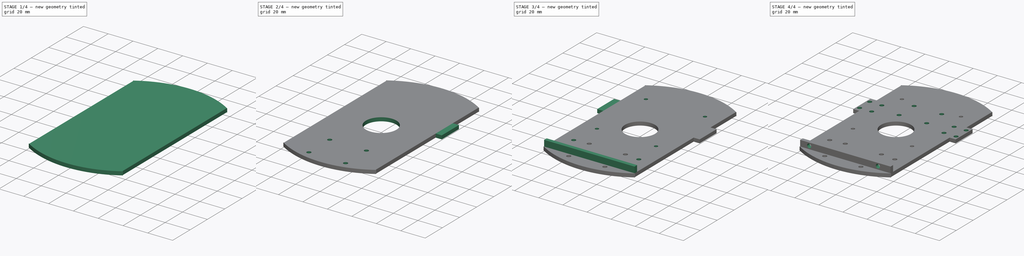
[diagram: build sequence overview — one tinted view per stage of 4, left to right]
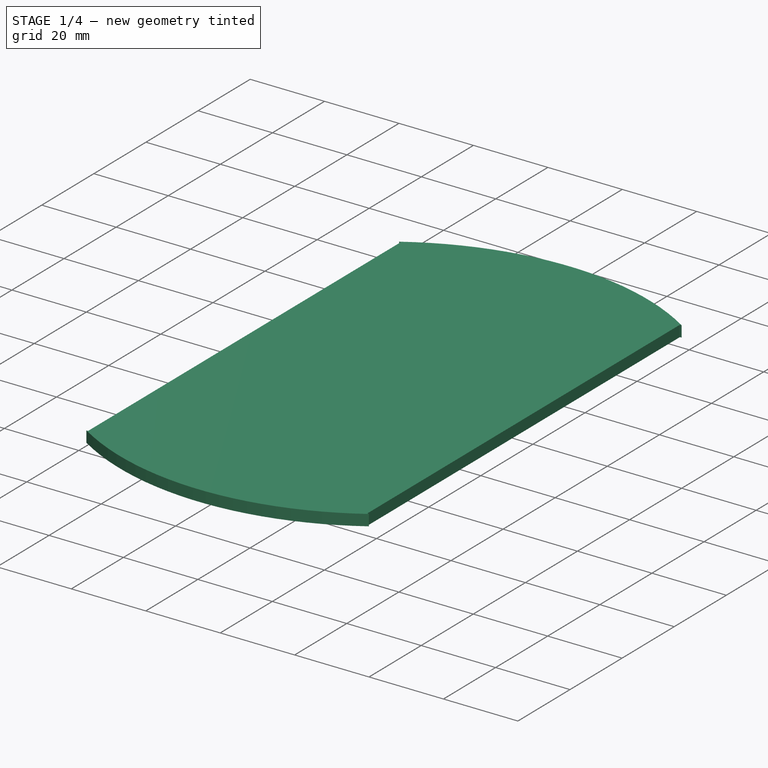
[diagram: stage 1 of 4 — iso view after this stage's code; geometry added in this stage tinted green]
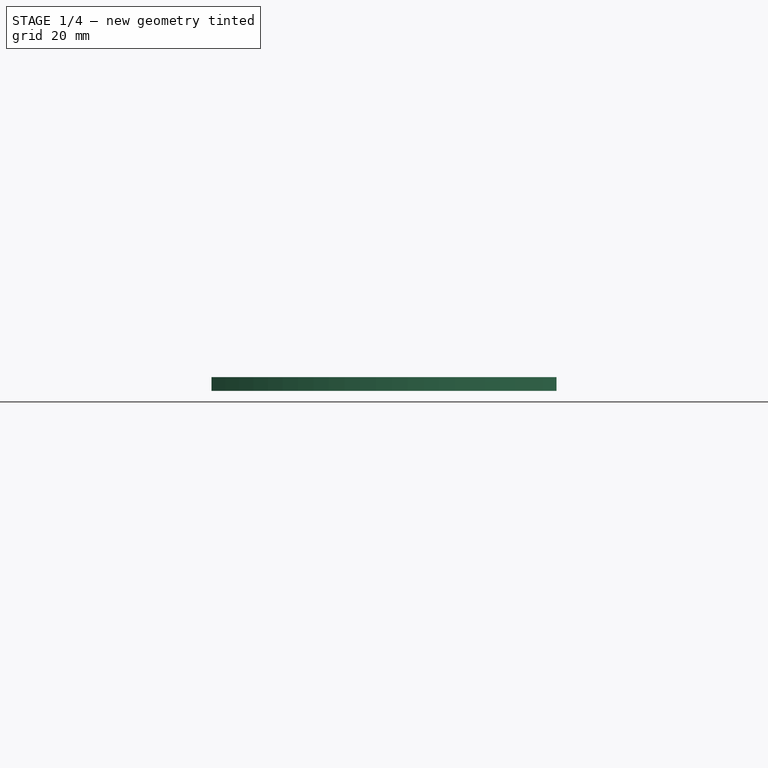
[diagram: stage 1 of 4 — front view after this stage's code; geometry added in this stage tinted green]
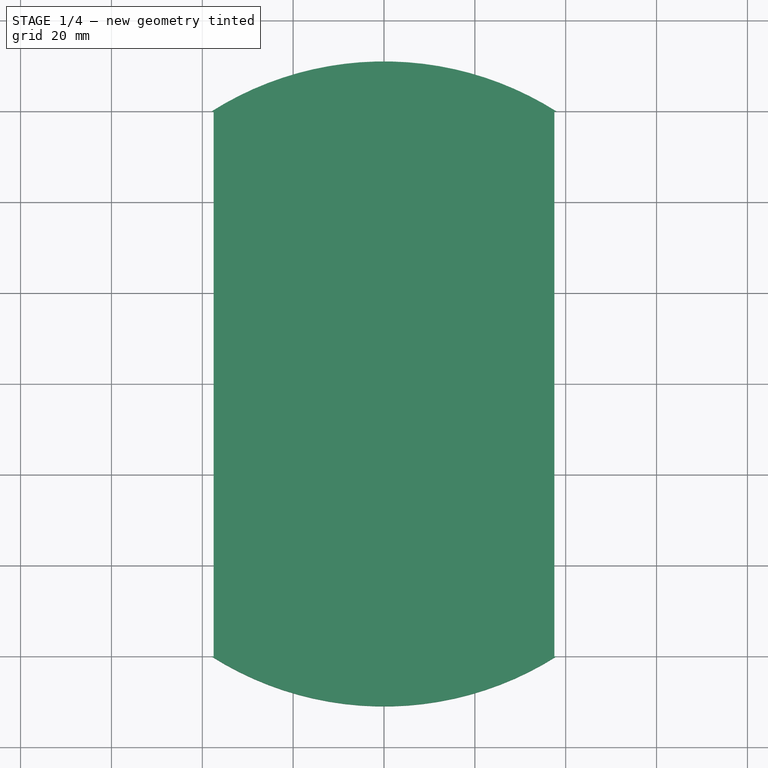
[diagram: stage 1 of 4 — top view after this stage's code; geometry added in this stage tinted green]
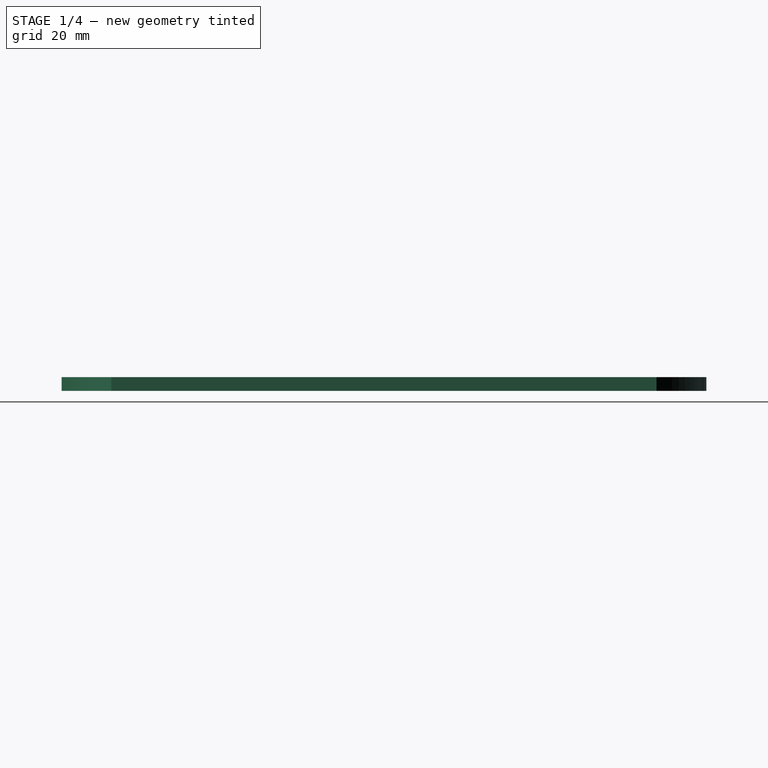
[diagram: stage 1 of 4 — right view after this stage's code; geometry added in this stage tinted green]
FCSTD DOCUMENT  (FreeCAD 1.0R39319 (Git))
Label: body
License: All rights reserved
LicenseURL: http://en.wikipedia.org/wiki/All_rights_reserved
objects: Sketcher::SketchObject×13, PartDesign::Hole×6, Spreadsheet::Sheet×4, PartDesign::Pad×4, PartDesign::Pocket×3, PartDesign::Body×1
note: 66 computed .brp shape members not serialized (recipe doc carries the construction recipe); baked Part::Feature solids carry a one-line shape summary decoded from their .brp

FEATURE [Spreadsheet::Sheet] Spreadsheet
  cells = A2='diameter; B2(diameter)=142; A3='raiduis; B3(radius)==B2 / 2; A4='battery_pack_offset; B4(battery_pack_offset)==B2 - 39 / 2; A5='width; B5(width)=75; A6='height; B6(height)=120; A7='harness_hole_diam; B7(harness_hole_diam)=25
FEATURE [Spreadsheet::Sheet] Spreadsheet001  label="pi"
  cells = A1='len; B1(len)=85; A2='width; B2(width)=49; A3='mnt_hole_len; B3(mnt_hole_len)=85; A4='mnt_hole_width; B4(mnt_hole_width)=49; A5='mnt_hole_offset; B5(mnt_hole_offset)=3.5
FEATURE [Spreadsheet::Sheet] Spreadsheet002  label="caster_wheel"
  cells = A1='wheel_diam; B1(wheel_diam)=32.4; A2='wheel_thickness; B2(wheel_thickness)=14.2; A3='height; B3(height)=42; A4='mnt_width; B4(mnt_width)=30; A5='mnt_len; B5(mnt_len)=24.3
FEATURE [Spreadsheet::Sheet] Spreadsheet003  label="hbridge"
  cells = A1='width; B1(width)=35; A2='len; B2(len)=30; A3='mnt_width; B3(mnt_width)==700 * 0.0254; C3='Converting mils to mm; A4='mnt_len; B4(mnt_len)==900 * 0.0254; C4='Converting mils to mm
FEATURE [Sketcher::SketchObject] Sketch  label="body"
  ArcFitTolerance = 1e-06
  AttachmentSupport = -> [XY_Plane]
  FullyConstrained = true
  MakeInternals = false
  MapMode = 5
  expr: Constraints[1] = Spreadsheet.diameter
  sketch-geometry (1):
    g0: Circle CenterX=0 CenterY=0 CenterZ=0 NormalX=0 NormalY=0 NormalZ=1 AngleXU=0 Radius=71
  constraints (2):
    c: Coincident(g0,g-1)
    c: Diameter(g0) = 142
FEATURE [PartDesign::Pad] Pad
  Direction = (0,0,1)
  Length = 3
  Length2 = 10
  Profile = -> Sketch
  ReferenceAxis = -> Sketch [N_Axis]
  Suppressed = false
  Type = 0
FEATURE [Sketcher::SketchObject] Sketch001
  ArcFitTolerance = 1e-06
  AttachmentSupport = -> [XY_Plane]
  FullyConstrained = false
  MakeInternals = false
  MapMode = 5
  expr: Constraints[10] = Spreadsheet.height / 2
  expr: Constraints[8] = Spreadsheet.width / 2
  expr: Constraints[9] = Spreadsheet.height
  sketch-geometry (4):
    g0: LineSegment StartX=37.5 StartY=60 StartZ=0 EndX=37.5 EndY=-60 EndZ=0
    g1: LineSegment StartX=37.5 StartY=-60 StartZ=0 EndX=90 EndY=-60 EndZ=0
    g2: LineSegment StartX=90 StartY=-60 StartZ=0 EndX=90 EndY=60 EndZ=0
    g3: LineSegment StartX=90 StartY=60 StartZ=0 EndX=37.5 EndY=60 EndZ=0
  constraints (11):
    c: Coincident(g0,g1)
    c: Coincident(g1,g2)
    c: Coincident(g2,g3)
    c: Coincident(g3,g0)
    c: Vertical(g0)
    c: Vertical(g2)
    c: Horizontal(g1)
    c: Horizontal(g3)
    c: DistanceX(g-1,g0) = 37.5
    c: DistanceY(g1,g2) = 120
    c: DistanceY(g-1,g0) = 60
FEATURE [PartDesign::Pocket] Pocket
  BaseFeature = -> Pad
  Direction = (0,0,-1)
  Length = 5
  Length2 = 5
  Profile = -> Sketch001
  ReferenceAxis = -> Sketch001 [N_Axis]
  Reversed = true
  Suppressed = false
  Type = 1
FEATURE [Sketcher::SketchObject] Sketch002
  ArcFitTolerance = 1e-06
  AttachmentSupport = -> [XY_Plane]
  FullyConstrained = true
  MakeInternals = false
  MapMode = 5
  expr: Constraints[10] = Spreadsheet.height / 2
  expr: Constraints[8] = Spreadsheet.width / 2
  expr: Constraints[9] = Spreadsheet.height
  sketch-geometry (4):
    g0: LineSegment StartX=-92.93 StartY=60 StartZ=0 EndX=-92.93 EndY=-60 EndZ=0
    g1: LineSegment StartX=-92.93 StartY=-60 StartZ=0 EndX=-37.5 EndY=-60 EndZ=0
    g2: LineSegment StartX=-37.5 StartY=-60 StartZ=0 EndX=-37.5 EndY=60 EndZ=0
    g3: LineSegment StartX=-37.5 StartY=60 StartZ=0 EndX=-92.93 EndY=60 EndZ=0
  constraints (12):
    c: Coincident(g0,g1)
    c: Coincident(g1,g2)
    c: Coincident(g2,g3)
    c: Coincident(g3,g0)
    c: Vertical(g0)
    c: Vertical(g2)
    c: Horizontal(g1)
    c: Horizontal(g3)
    c: DistanceX(g1,g-1) = 37.5
    c: DistanceY(g0,g0) = 120
    c: DistanceY(g-1,g2) = 60
    c: DistanceX(g0,g2) = 55.43
FEATURE [PartDesign::Pocket] Pocket001
  BaseFeature = -> Pocket
  Direction = (0,0,-1)
  Length = 5
  Length2 = 5
  Profile = -> Sketch002
  ReferenceAxis = -> Sketch002 [N_Axis]
  Reversed = true
  Suppressed = false
  Type = 1
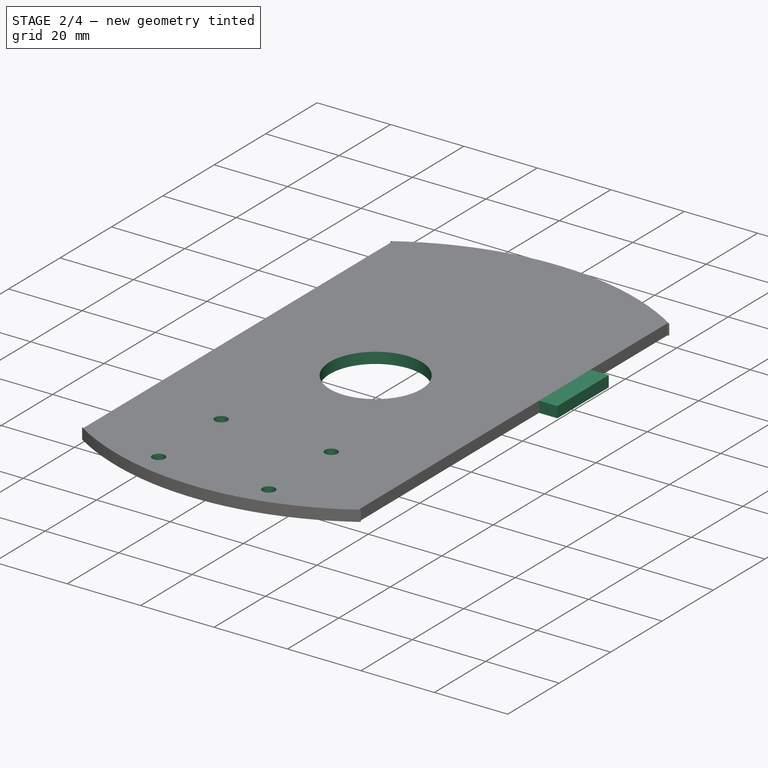
[diagram: stage 2 of 4 — iso view after this stage's code; geometry added in this stage tinted green]
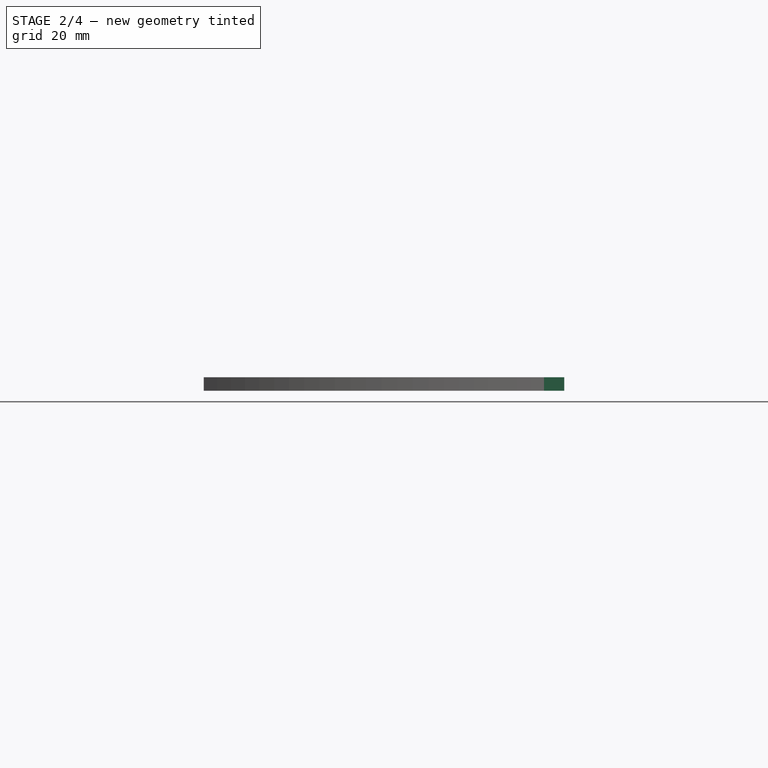
[diagram: stage 2 of 4 — front view after this stage's code; geometry added in this stage tinted green]
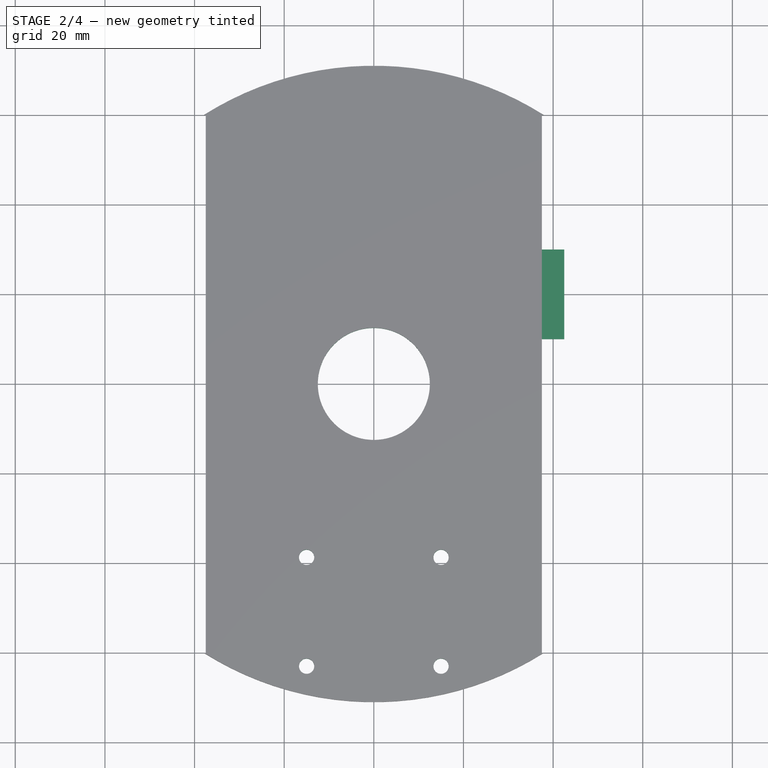
[diagram: stage 2 of 4 — top view after this stage's code; geometry added in this stage tinted green]
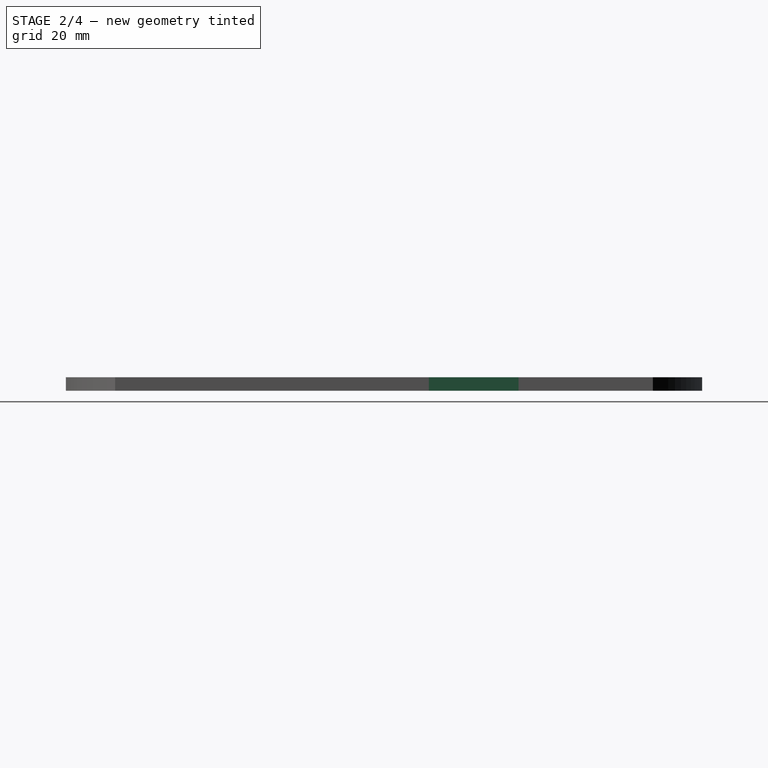
[diagram: stage 2 of 4 — right view after this stage's code; geometry added in this stage tinted green]
FEATURE [Sketcher::SketchObject] Sketch003
  ArcFitTolerance = 1e-06
  AttachmentSupport = -> [XY_Plane]
  FullyConstrained = true
  MakeInternals = false
  MapMode = 5
  expr: Constraints[1] = Spreadsheet.harness_hole_diam
  sketch-geometry (1):
    g0: Circle CenterX=0 CenterY=0 CenterZ=0 NormalX=0 NormalY=0 NormalZ=1 AngleXU=0 Radius=12.5
  constraints (2):
    c: Coincident(g0,g-1)
    c: Diameter(g0) = 25
FEATURE [PartDesign::Pocket] Pocket002
  BaseFeature = -> Pocket001
  Direction = (0,0,-1)
  Length = 5
  Length2 = 5
  Profile = -> Sketch003
  ReferenceAxis = -> Sketch003 [N_Axis]
  Reversed = true
  Suppressed = false
  Type = 1
FEATURE [Sketcher::SketchObject] Sketch004  label="caster_wheel001"
  ArcFitTolerance = 1e-06
  AttachmentSupport = -> [XY_Plane]
  FullyConstrained = true
  MakeInternals = false
  MapMode = 5
  expr: Constraints[10] = Spreadsheet.height / 2 + 3
  expr: Constraints[6] = Spreadsheet002.mnt_width
  expr: Constraints[7] = Spreadsheet002.mnt_len
  expr: Constraints[8] = Spreadsheet002.mnt_width / 2
  sketch-geometry (4):
    g0: Circle CenterX=-15 CenterY=-38.7 CenterZ=0 NormalX=0 NormalY=0 NormalZ=1 AngleXU=0 Radius=1.5
    g1: Circle CenterX=15 CenterY=-38.7 CenterZ=0 NormalX=0 NormalY=0 NormalZ=1 AngleXU=0 Radius=1.5
    g2: Circle CenterX=-15 CenterY=-63 CenterZ=0 NormalX=0 NormalY=0 NormalZ=1 AngleXU=0 Radius=1.5
    g3: Circle CenterX=15 CenterY=-63 CenterZ=0 NormalX=0 NormalY=0 NormalZ=1 AngleXU=0 Radius=1.5
  constraints (12):
    c: Equal(g3,g1)
    c: Equal(g1,g0)
    c: Equal(g0,g2)
    c: Vertical(g3,g1)
    c: Vertical(g0,g2)
    c: Horizontal(g0,g1)
    c: DistanceX(g0,g1) = 30
    c: DistanceY(g2,g0) = 24.3
    c: DistanceX(g0,g-1) = 15
    c: Diameter(g3) = 3
    c: DistanceY(g3,g-1) = 63
    c: Horizontal(g2,g3)
FEATURE [PartDesign::Hole] Hole
  BaseFeature = -> Pocket002
  CustomThreadClearance = 0
  Depth = 325.32
  DepthType = 1
  Diameter = 3.4
  DrillForDepth = false
  DrillPoint = 1
  DrillPointAngle = 118
  HoleCutCountersinkAngle = 90
  HoleCutCustomValues = false
  HoleCutDepth = 0
  HoleCutDiameter = 6.1
  HoleCutType = 0
  ModelThread = false
  Profile = -> Sketch004
  Reversed = true
  Suppressed = false
  Tapered = false
  TaperedAngle = 90
  ThreadClass = 0
  ThreadDepth = 325.32
  ThreadDepthType = 0
  ThreadDirection = 0
  ThreadFit = 0
  ThreadSize = 9
  ThreadType = 1
  Threaded = false
  UseCustomThreadClearance = false
FEATURE [Sketcher::SketchObject] Sketch005  label="wheel_mount_right"
  ArcFitTolerance = 1e-06
  AttachmentSupport = -> [XY_Plane]
  FullyConstrained = true
  MakeInternals = false
  MapMode = 5
  expr: Constraints[11] = 120 / 2 - 30
  expr: Constraints[8] = 75 / 2 + 5
  sketch-geometry (4):
    g0: LineSegment StartX=27.5 StartY=30 StartZ=0 EndX=27.5 EndY=10 EndZ=0
    g1: LineSegment StartX=27.5 StartY=10 StartZ=0 EndX=42.5 EndY=10 EndZ=0
    g2: LineSegment StartX=42.5 StartY=10 StartZ=0 EndX=42.5 EndY=30 EndZ=0
    g3: LineSegment StartX=42.5 StartY=30 StartZ=0 EndX=27.5 EndY=30 EndZ=0
  constraints (12):
    c: Coincident(g0,g1)
    c: Coincident(g1,g2)
    c: Coincident(g2,g3)
    c: Coincident(g3,g0)
    c: Vertical(g0)
    c: Vertical(g2)
    c: Horizontal(g1)
    c: Horizontal(g3)
    c: DistanceX(g-1,g1) = 42.5
    c: DistanceY(g1,g2) = 20
    c: DistanceX(g0,g2) = 15
    c: DistanceY(g-1,g0) = 30
FEATURE [PartDesign::Pad] Pad001
  BaseFeature = -> Hole
  Direction = (0,0,1)
  Length = 3
  Length2 = 10
  Profile = -> Sketch005
  ReferenceAxis = -> Sketch005 [N_Axis]
  Suppressed = false
  Type = 0
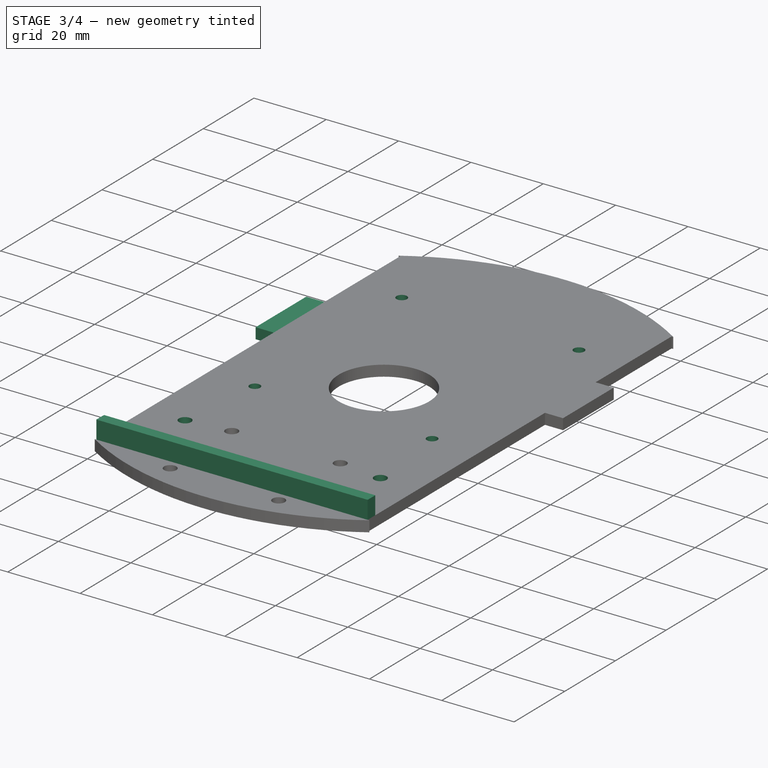
[diagram: stage 3 of 4 — iso view after this stage's code; geometry added in this stage tinted green]
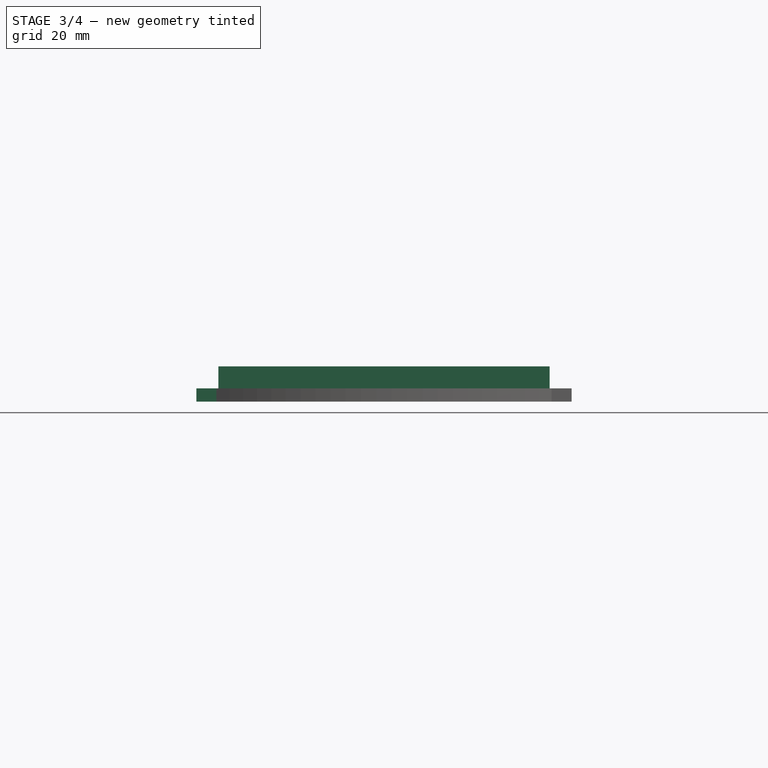
[diagram: stage 3 of 4 — front view after this stage's code; geometry added in this stage tinted green]
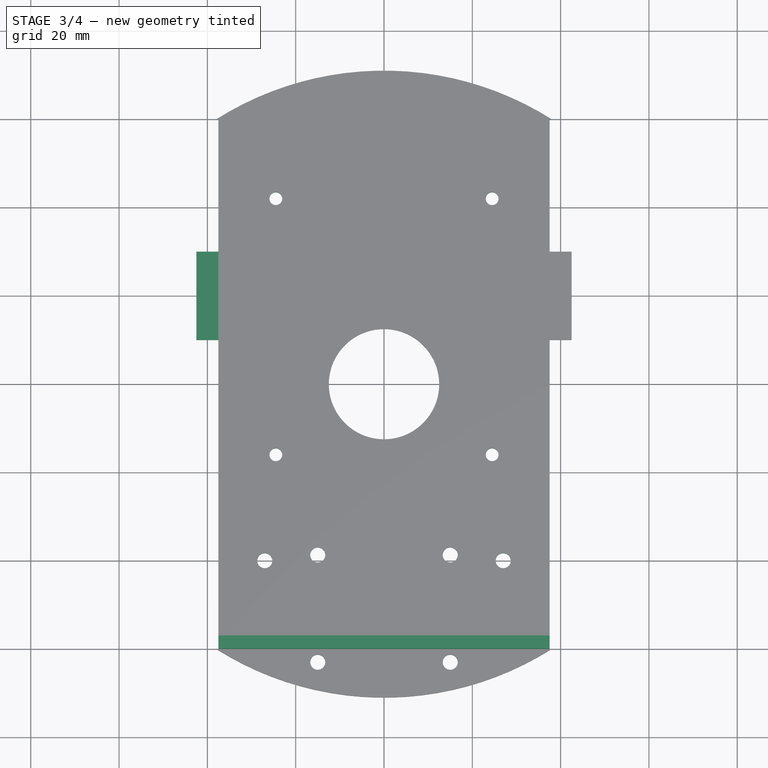
[diagram: stage 3 of 4 — top view after this stage's code; geometry added in this stage tinted green]
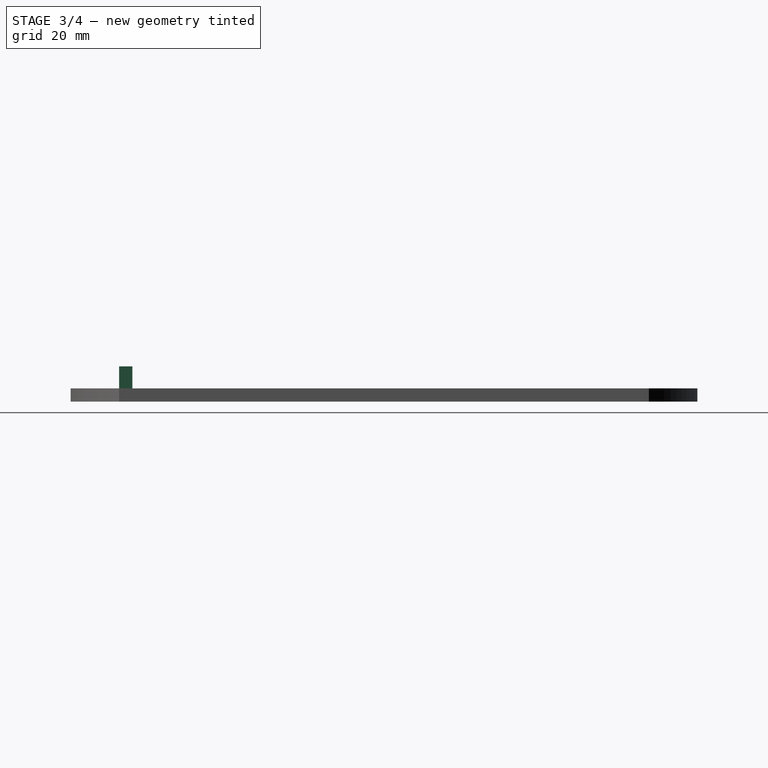
[diagram: stage 3 of 4 — right view after this stage's code; geometry added in this stage tinted green]
FEATURE [Sketcher::SketchObject] Sketch006  label="wheel_mount_left"
  ArcFitTolerance = 1e-06
  AttachmentSupport = -> [XY_Plane]
  FullyConstrained = true
  MakeInternals = false
  MapMode = 5
  expr: Constraints[10] = 30
  expr: Constraints[11] = 75 / 2 + 5
  expr: Constraints[8] = 20
  sketch-geometry (4):
    g0: LineSegment StartX=-42.5 StartY=30 StartZ=0 EndX=-42.5 EndY=10 EndZ=0
    g1: LineSegment StartX=-42.5 StartY=10 StartZ=0 EndX=-27.5 EndY=10 EndZ=0
    g2: LineSegment StartX=-27.5 StartY=10 StartZ=0 EndX=-27.5 EndY=30 EndZ=0
    g3: LineSegment StartX=-27.5 StartY=30 StartZ=0 EndX=-42.5 EndY=30 EndZ=0
  constraints (12):
    c: Coincident(g0,g1)
    c: Coincident(g1,g2)
    c: Coincident(g2,g3)
    c: Coincident(g3,g0)
    c: Vertical(g0)
    c: Vertical(g2)
    c: Horizontal(g1)
    c: Horizontal(g3)
    c: DistanceY(g0,g0) = 20
    c: DistanceX(g0,g2) = 15
    c: DistanceY(g-1,g2) = 30
    c: DistanceX(g0,g-1) = 42.5
FEATURE [PartDesign::Pad] Pad002
  BaseFeature = -> Pad001
  Direction = (0,0,1)
  Length = 3
  Length2 = 10
  Profile = -> Sketch006
  ReferenceAxis = -> Sketch006 [N_Axis]
  Suppressed = false
  Type = 0
FEATURE [Sketcher::SketchObject] Sketch007
  ArcFitTolerance = 1e-06
  AttachmentSupport = -> [XY_Plane]
  FullyConstrained = true
  MakeInternals = false
  MapMode = 5
  expr: Constraints[10] = Spreadsheet.width / 2
  expr: Constraints[9] = Spreadsheet.width
  sketch-geometry (4):
    g0: LineSegment StartX=-37.5 StartY=-57 StartZ=0 EndX=-37.5 EndY=-60 EndZ=0
    g1: LineSegment StartX=-37.5 StartY=-60 StartZ=0 EndX=37.5 EndY=-60 EndZ=0
    g2: LineSegment StartX=37.5 StartY=-60 StartZ=0 EndX=37.5 EndY=-57 EndZ=0
    g3: LineSegment StartX=37.5 StartY=-57 StartZ=0 EndX=-37.5 EndY=-57 EndZ=0
  constraints (12):
    c: Coincident(g0,g1)
    c: Coincident(g1,g2)
    c: Coincident(g2,g3)
    c: Coincident(g3,g0)
    c: Vertical(g0)
    c: Vertical(g2)
    c: Horizontal(g1)
    c: Horizontal(g3)
    c: DistanceY(g0,g0) = 3
    c: DistanceX(g0,g2) = 75
    c: DistanceX(g0,g-1) = 37.5
    c: DistanceY(g2,g-1) = 57
FEATURE [PartDesign::Pad] Pad003
  BaseFeature = -> Pad002
  Direction = (0,0,1)
  Length = 8
  Length2 = 10
  Profile = -> Sketch007
  ReferenceAxis = -> Sketch007 [N_Axis]
  Suppressed = false
  Type = 0
FEATURE [Sketcher::SketchObject] Sketch008
  ArcFitTolerance = 1e-06
  AttachmentSupport = -> [XY_Plane]
  FullyConstrained = true
  MakeInternals = false
  MapMode = 5
  expr: Constraints[2] = 54 / 2
  expr: Constraints[4] = Spreadsheet.height / 2 - 40 / 2
  sketch-geometry (2):
    g0: Circle CenterX=-27 CenterY=-40 CenterZ=0 NormalX=0 NormalY=0 NormalZ=1 AngleXU=0 Radius=1.5
    g1: Circle CenterX=27 CenterY=-40 CenterZ=0 NormalX=0 NormalY=0 NormalZ=1 AngleXU=0 Radius=1.5
  constraints (6):
    c: Equal(g1,g0)
    c: DistanceX(g0,g1) = 54
    c: DistanceX(g0,g-1) = 27
    c: Diameter(g1) = 3
    c: DistanceY(g0,g-1) = 40
    c: Horizontal(g0,g1)
FEATURE [PartDesign::Hole] Hole001
  BaseFeature = -> Pad003
  CustomThreadClearance = 0
  Depth = 334.693
  DepthType = 1
  Diameter = 3.4
  DrillForDepth = false
  DrillPoint = 1
  DrillPointAngle = 118
  HoleCutCountersinkAngle = 90
  HoleCutCustomValues = false
  HoleCutDepth = 0
  HoleCutDiameter = 6.1
  HoleCutType = 0
  ModelThread = false
  Profile = -> Sketch008
  Reversed = true
  Suppressed = false
  Tapered = false
  TaperedAngle = 90
  ThreadClass = 0
  ThreadDepth = 334.693
  ThreadDepthType = 0
  ThreadDirection = 0
  ThreadFit = 0
  ThreadSize = 9
  ThreadType = 1
  Threaded = false
  UseCustomThreadClearance = false
FEATURE [Sketcher::SketchObject] Sketch010
  ArcFitTolerance = 1e-06
  AttachmentSupport = -> [XY_Plane]
  FullyConstrained = true
  MakeInternals = false
  MapMode = 5
  expr: Constraints[11] = 49 / 2
  sketch-geometry (4):
    g0: Circle CenterX=-24.5 CenterY=-16 CenterZ=0 NormalX=0 NormalY=0 NormalZ=1 AngleXU=0 Radius=3.5
    g1: Circle CenterX=24.5 CenterY=-16 CenterZ=0 NormalX=0 NormalY=0 NormalZ=1 AngleXU=0 Radius=3.5
    g2: Circle CenterX=24.5 CenterY=42 CenterZ=0 NormalX=0 NormalY=0 NormalZ=1 AngleXU=0 Radius=3.5
    g3: Circle CenterX=-24.5 CenterY=42 CenterZ=0 NormalX=0 NormalY=0 NormalZ=1 AngleXU=0 Radius=3.5
  constraints (12):
    c: Radius(g0) = 3.5
    c: Equal(g0,g1)
    c: Equal(g1,g2)
    c: Equal(g2,g3)
    c: Vertical(g0,g3)
    c: Vertical(g1,g2)
    c: Horizontal(g3,g2)
    c: Horizontal(g0,g1)
    c: DistanceX(g0,g1) = 49
    c: DistanceY(g1,g2) = 58
    c: DistanceY(g0,g-1) = 16
    c: DistanceX(g0,g-1) = 24.5
FEATURE [PartDesign::Hole] Hole002
  BaseFeature = -> Hole001
  CustomThreadClearance = 0
  Depth = 334.693
  DepthType = 1
  Diameter = 2.9
  DrillForDepth = false
  DrillPoint = 1
  DrillPointAngle = 118
  HoleCutCountersinkAngle = 90
  HoleCutCustomValues = false
  HoleCutDepth = 0
  HoleCutDiameter = 6.1
  HoleCutType = 0
  ModelThread = false
  Profile = -> Sketch010
  Reversed = true
  Suppressed = false
  Tapered = false
  TaperedAngle = 90
  ThreadClass = 0
  ThreadDepth = 334.693
  ThreadDepthType = 0
  ThreadDirection = 0
  ThreadFit = 0
  ThreadSize = 8
  ThreadType = 1
  Threaded = false
  UseCustomThreadClearance = false
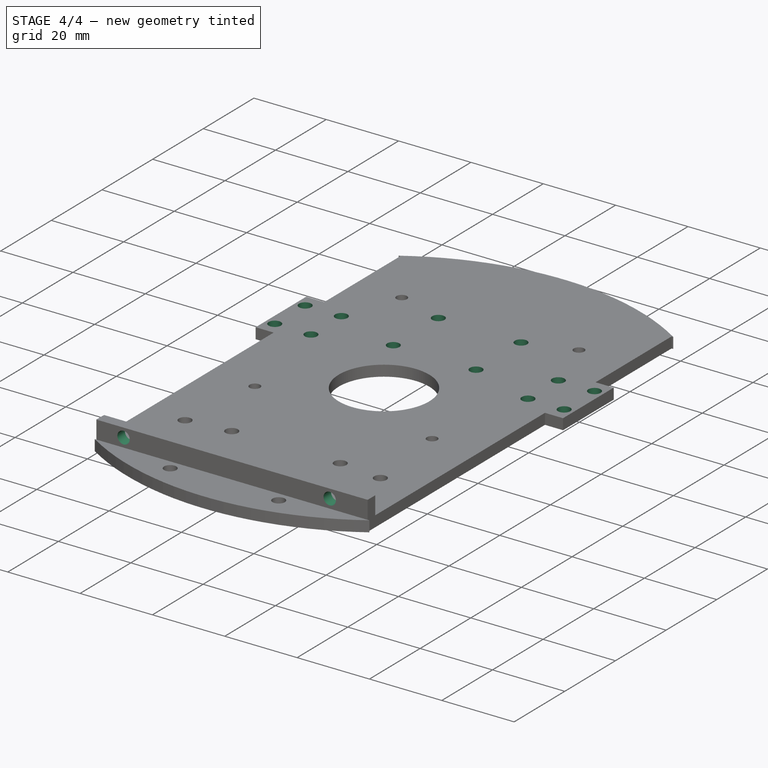
[diagram: stage 4 of 4 — iso view after this stage's code; geometry added in this stage tinted green]
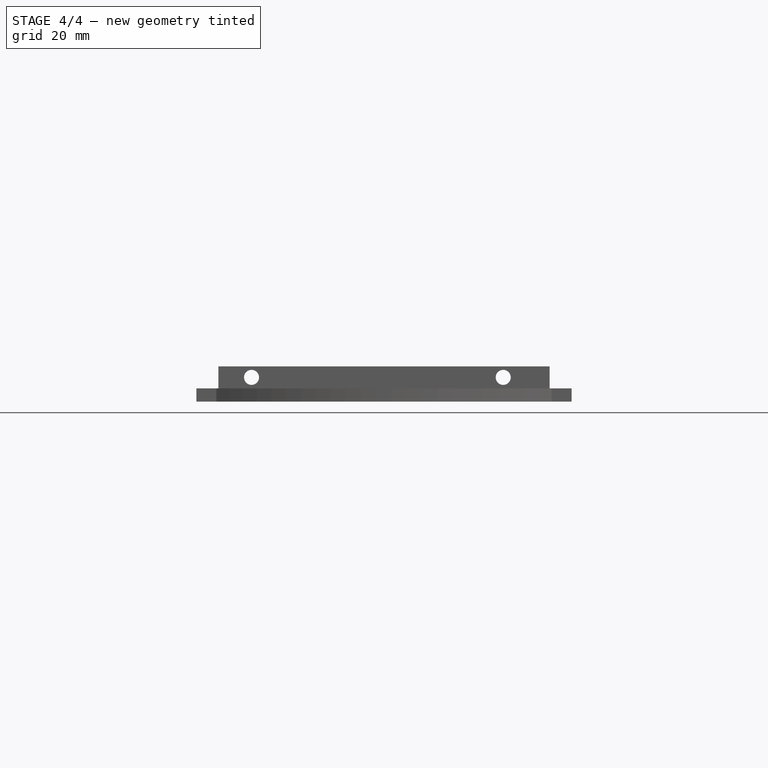
[diagram: stage 4 of 4 — front view after this stage's code; geometry added in this stage tinted green]
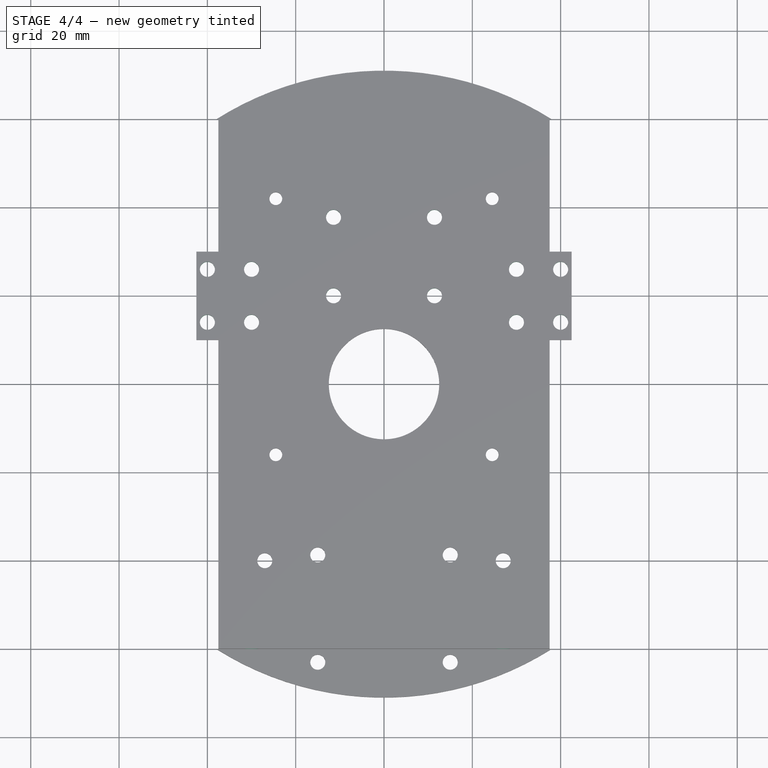
[diagram: stage 4 of 4 — top view after this stage's code; geometry added in this stage tinted green]
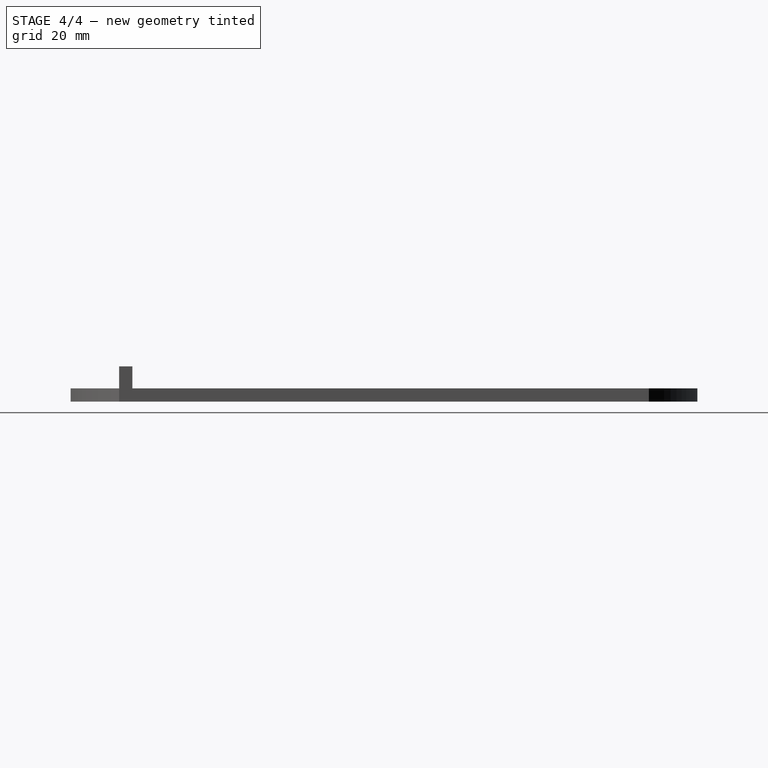
[diagram: stage 4 of 4 — right view after this stage's code; geometry added in this stage tinted green]
FEATURE [Sketcher::SketchObject] Sketch011
  ArcFitTolerance = 1e-06
  AttachmentSupport = -> [XY_Plane]
  FullyConstrained = true
  MakeInternals = false
  MapMode = 5
  expr: Constraints[22] = 12 mm
  expr: Constraints[23] = 14
  sketch-geometry (8):
    g0: Circle CenterX=-30 CenterY=26 CenterZ=0 NormalX=0 NormalY=0 NormalZ=1 AngleXU=0 Radius=1.5
    g1: Circle CenterX=-40 CenterY=26 CenterZ=0 NormalX=0 NormalY=0 NormalZ=1 AngleXU=0 Radius=1.5
    g2: Circle CenterX=-30 CenterY=14 CenterZ=0 NormalX=0 NormalY=0 NormalZ=1 AngleXU=0 Radius=1.5
    g3: Circle CenterX=-40 CenterY=14 CenterZ=0 NormalX=0 NormalY=0 NormalZ=1 AngleXU=0 Radius=1.5
    g4: Circle CenterX=30 CenterY=26 CenterZ=0 NormalX=0 NormalY=0 NormalZ=1 AngleXU=0 Radius=1.5
    g5: Circle CenterX=40 CenterY=26 CenterZ=0 NormalX=0 NormalY=0 NormalZ=1 AngleXU=0 Radius=1.5
    g6: Circle CenterX=30 CenterY=14 CenterZ=0 NormalX=0 NormalY=0 NormalZ=1 AngleXU=0 Radius=1.5
    g7: Circle CenterX=40 CenterY=14 CenterZ=0 NormalX=0 NormalY=0 NormalZ=1 AngleXU=0 Radius=1.5
  constraints (24):
    c: Diameter(g2) = 3
    c: Equal(g3,g2)
    c: Equal(g2,g0)
    c: Equal(g0,g1)
    c: Equal(g1,g4)
    c: Equal(g4,g5)
    c: Equal(g5,g7)
    c: Equal(g7,g6)
    c: Horizontal(g6,g7)
    c: Horizontal(g7,g2)
    c: Horizontal(g2,g3)
    c: Horizontal(g1,g0)
    c: Horizontal(g0,g4)
    c: Horizontal(g4,g5)
    c: Vertical(g3,g1)
    c: Vertical(g2,g0)
    c: Vertical(g6,g4)
    c: Vertical(g7,g5)
    c: DistanceX(g6,g7) = 10
    c: DistanceX(g3,g2) = 10
    c: DistanceX(g2,g6) = 60
    c: DistanceX(g-1,g6) = 30
    c: DistanceY(g3,g1) = 12
    c: DistanceY(g-1,g2) = 14
FEATURE [PartDesign::Hole] Hole003
  BaseFeature = -> Hole002
  CustomThreadClearance = 0
  Depth = 334.693
  DepthType = 1
  Diameter = 3.4
  DrillForDepth = false
  DrillPoint = 1
  DrillPointAngle = 118
  HoleCutCountersinkAngle = 90
  HoleCutCustomValues = false
  HoleCutDepth = 0
  HoleCutDiameter = 6.1
  HoleCutType = 0
  ModelThread = false
  Profile = -> Sketch011
  Reversed = true
  Suppressed = false
  Tapered = false
  TaperedAngle = 90
  ThreadClass = 0
  ThreadDepth = 334.693
  ThreadDepthType = 0
  ThreadDirection = 0
  ThreadFit = 0
  ThreadSize = 9
  ThreadType = 1
  Threaded = false
  UseCustomThreadClearance = false
FEATURE [Sketcher::SketchObject] Sketch013
  ArcFitTolerance = 1e-06
  AttachmentSupport = -> [XY_Plane]
  FullyConstrained = true
  MakeInternals = false
  MapMode = 5
  expr: Constraints[10] = Spreadsheet003.mnt_len / 2
  expr: Constraints[8] = Spreadsheet003.mnt_width
  expr: Constraints[9] = Spreadsheet003.mnt_len
  sketch-geometry (4):
    g0: Circle CenterX=-11.43 CenterY=37.78 CenterZ=0 NormalX=0 NormalY=0 NormalZ=1 AngleXU=0 Radius=1.6
    g1: Circle CenterX=11.43 CenterY=37.78 CenterZ=0 NormalX=0 NormalY=0 NormalZ=1 AngleXU=0 Radius=1.6
    g2: Circle CenterX=-11.43 CenterY=20 CenterZ=0 NormalX=0 NormalY=0 NormalZ=1 AngleXU=0 Radius=1.6
    g3: Circle CenterX=11.43 CenterY=20 CenterZ=0 NormalX=0 NormalY=0 NormalZ=1 AngleXU=0 Radius=1.6
  constraints (12):
    c: Diameter(g3) = 3.2
    c: Equal(g3,g2)
    c: Equal(g2,g0)
    c: Equal(g0,g1)
    c: Horizontal(g2,g3)
    c: Horizontal(g0,g1)
    c: Vertical(g2,g0)
    c: Vertical(g1,g3)
    c: DistanceY(g3,g1) = 17.78
    c: DistanceX(g0,g1) = 22.86
    c: DistanceX(g-1,g3) = 11.43
    c: DistanceY(g-1,g3) = 20
FEATURE [PartDesign::Hole] Hole004
  BaseFeature = -> Hole003
  CustomThreadClearance = 0
  Depth = 334.693
  DepthType = 1
  Diameter = 3.4
  DrillForDepth = false
  DrillPoint = 1
  DrillPointAngle = 118
  HoleCutCountersinkAngle = 90
  HoleCutCustomValues = false
  HoleCutDepth = 0
  HoleCutDiameter = 6.1
  HoleCutType = 0
  ModelThread = false
  Profile = -> Sketch013
  Reversed = true
  Suppressed = false
  Tapered = false
  TaperedAngle = 90
  ThreadClass = 0
  ThreadDepth = 334.693
  ThreadDepthType = 0
  ThreadDirection = 0
  ThreadFit = 0
  ThreadSize = 9
  ThreadType = 1
  Threaded = false
  UseCustomThreadClearance = false
FEATURE [Sketcher::SketchObject] Sketch014
  ArcFitTolerance = 1e-06
  AttachmentSupport = -> [XZ_Plane]
  FullyConstrained = false
  MakeInternals = false
  MapMode = 5
  Placement = pos=(0,0,0) rot=(1,0,0;1.5708rad)
  expr: Constraints[3] = 54 / 2
  sketch-geometry (2):
    g0: Circle CenterX=-30 CenterY=5.5 CenterZ=0 NormalX=0 NormalY=0 NormalZ=1 AngleXU=0 Radius=1.5
    g1: Circle CenterX=27 CenterY=5.5 CenterZ=0 NormalX=0 NormalY=0 NormalZ=1 AngleXU=0 Radius=1.5
  constraints (5):
    c: Equal(g1,g0)
    c: Horizontal(g0,g1)
    c: Diameter(g0) = 3
    c: DistanceX(g-1,g1) = 27
    c: DistanceY(g-1,g1) = 5.5
FEATURE [PartDesign::Hole] Hole005
  BaseFeature = -> Hole004
  CustomThreadClearance = 0
  Depth = 334.693
  DepthType = 1
  Diameter = 3.4
  DrillForDepth = false
  DrillPoint = 1
  DrillPointAngle = 118
  HoleCutCountersinkAngle = 90
  HoleCutCustomValues = false
  HoleCutDepth = 0
  HoleCutDiameter = 6.1
  HoleCutType = 0
  ModelThread = false
  Profile = -> Sketch014
  Reversed = true
  Suppressed = false
  Tapered = false
  TaperedAngle = 90
  ThreadClass = 0
  ThreadDepth = 334.693
  ThreadDepthType = 0
  ThreadDirection = 0
  ThreadFit = 0
  ThreadSize = 9
  ThreadType = 1
  Threaded = false
  UseCustomThreadClearance = false
FEATURE [PartDesign::Body] Body
  AllowCompound = false
  Group = -> [Sketch,Pad,Sketch001,Pocket,Sketch002,Pocket001,Sketch003,Pocket002,Sketch004,Hole,Sketch005,Pad001,Sketch006,Pad002,Sketch007,Pad003,Sketch008,Hole001,Sketch010,Hole002,Sketch011,Hole003,Sketch013,Hole004,Sketch014,Hole005]
  Origin = -> Origin
  Tip = -> Hole005
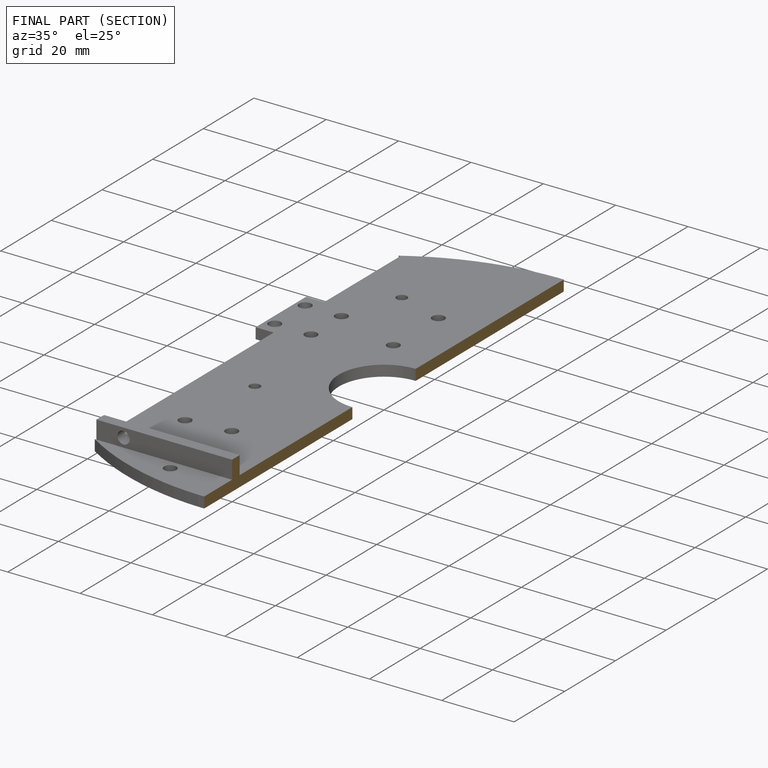
[diagram: finished part — half-section view (interior)]
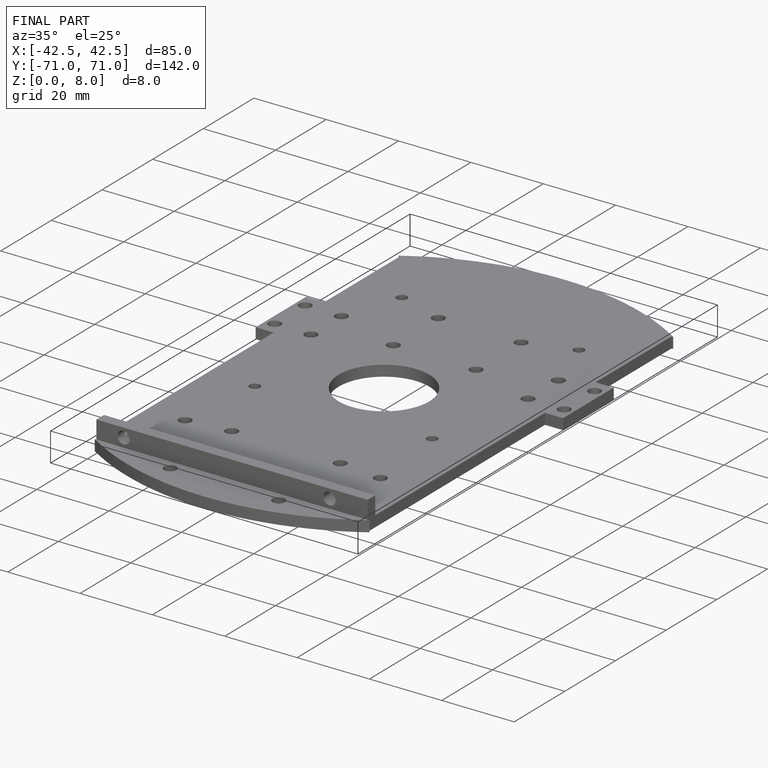
[diagram: finished part — iso view with bounding-box wireframe]
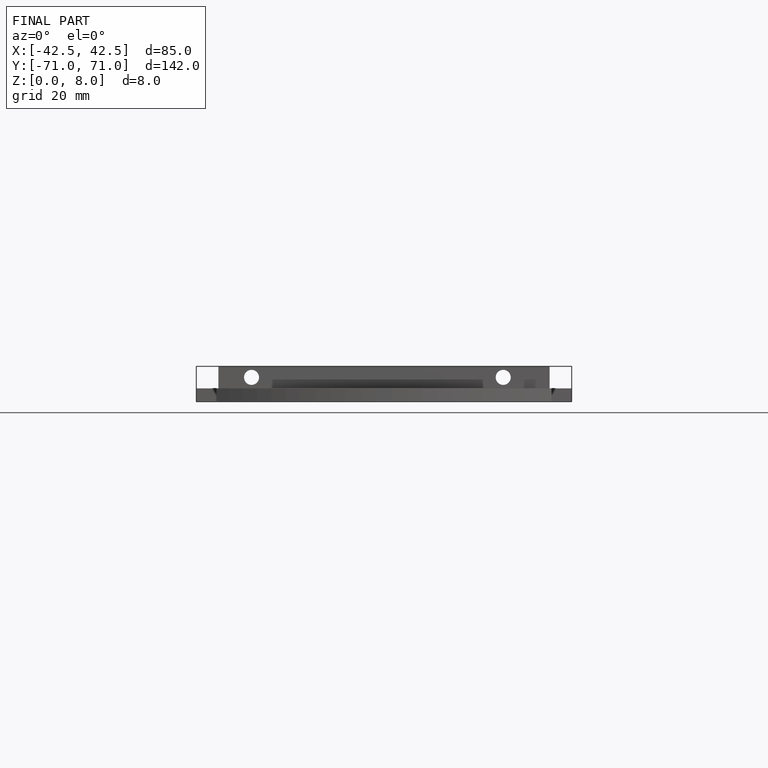
[diagram: finished part — front view with bounding-box wireframe]
